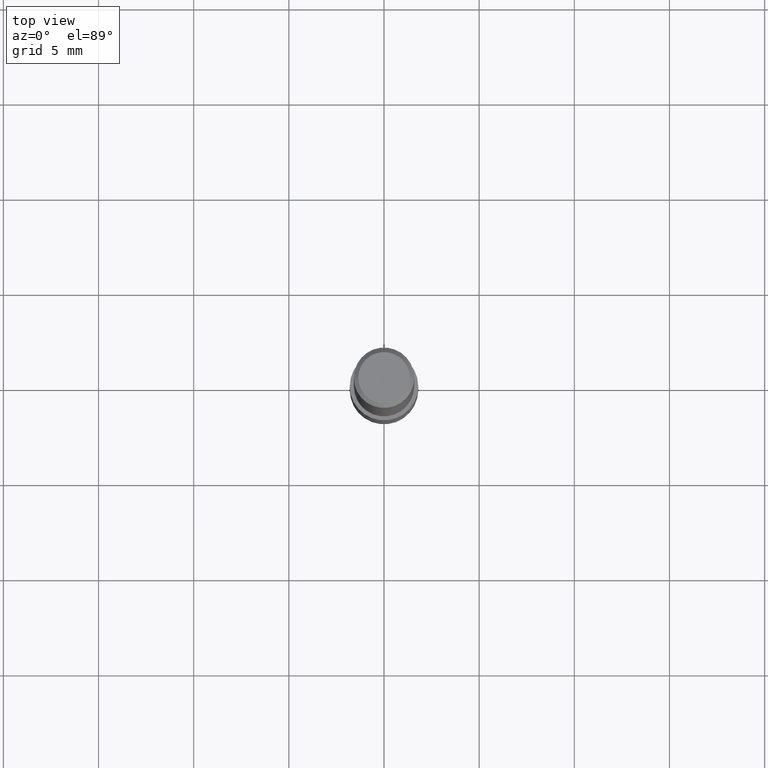
[diagram: clean part render]
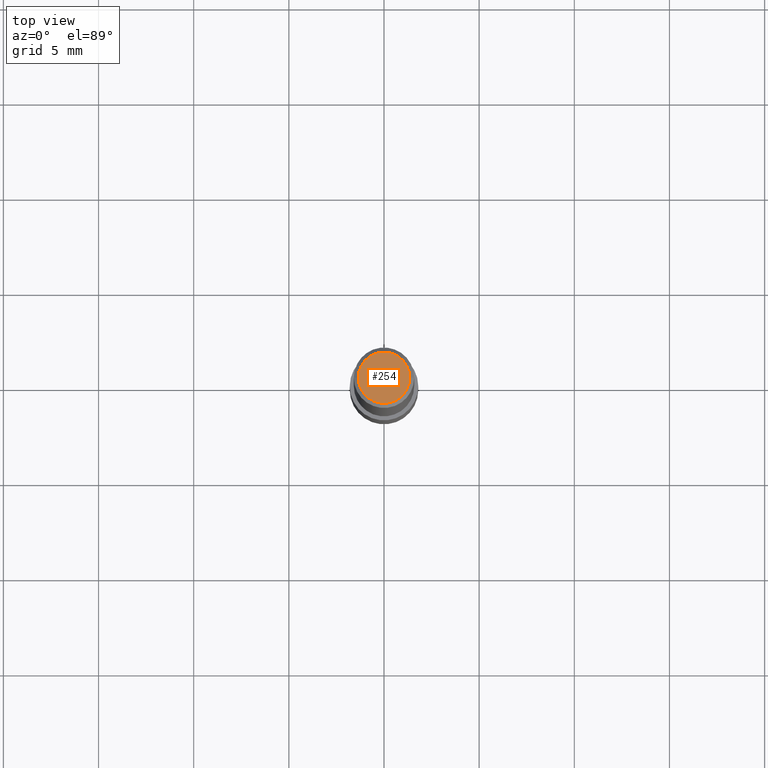
[diagram: same view with one face highlighted and labeled with its STEP entity id]
A machine part, top view. The second image highlights one B-rep face of the part: STEP entity #254.
In plain terms, the highlighted planar face has unit normal (0, -0, -1).
Its self-contained STEP definition (entity closure, byte-faithful):
#5 = DIRECTION ( 'NONE',  ( 1.000000000000000000, -6.982962677686266711E-15, 4.876176628004948512E-29 ) ) ;
#11 = DIRECTION ( 'NONE',  ( -1.000000000000000000, 6.982962677686265922E-15, -4.876176775795935793E-29 ) ) ;
#17 = EDGE_CURVE ( 'NONE', #153, #262, #289, .T. ) ;
#18 = AXIS2_PLACEMENT_3D ( 'NONE', #265, #136, #11 ) ;
#24 = EDGE_LOOP ( 'NONE', ( #232, #338 ) ) ;
#51 = CARTESIAN_POINT ( 'NONE',  ( -7.487088864773345706E-50, 1.068957861474247695E-35, 3.061616997868395197E-21 ) ) ;
#52 = DIRECTION ( 'NONE',  ( 1.000000000000000000, -6.982962677686266711E-15, 4.876176628004948512E-29 ) ) ;
#76 = DIRECTION ( 'NONE',  ( -2.445468806185136597E-29, 3.491481338843145583E-15, 1.000000000000000000 ) ) ;
#97 = AXIS2_PLACEMENT_3D ( 'NONE', #51, #105, #5 ) ;
#105 = DIRECTION ( 'NONE',  ( -2.445468806185136597E-29, 3.491481338843145583E-15, 1.000000000000000000 ) ) ;
#113 = CARTESIAN_POINT ( 'NONE',  ( 0.05312499999999999861, -4.129888592719939842E-16, 3.061617000609493422E-21 ) ) ;
#121 = CARTESIAN_POINT ( 'NONE',  ( -7.487088864773345706E-50, 1.068957861474247695E-35, 3.061616997868395197E-21 ) ) ;
#132 = AXIS2_PLACEMENT_3D ( 'NONE', #121, #76, #52 ) ;
#136 = DIRECTION ( 'NONE',  ( 2.438088387897960049E-29, -3.491481338843145188E-15, -1.000000000000000000 ) ) ;
#153 = VERTEX_POINT ( 'NONE', #113 ) ;
#183 = CARTESIAN_POINT ( 'NONE',  ( -0.05312499999999999861, 3.873362110279099094E-16, 3.061616995216862494E-21 ) ) ;
#193 = CIRCLE ( 'NONE', #97, 0.05312499999999999861 ) ;
#214 = EDGE_CURVE ( 'NONE', #262, #153, #193, .T. ) ;
#232 = ORIENTED_EDGE ( 'NONE', *, *, #214, .T. ) ;
#240 = PLANE ( 'NONE',  #18 ) ;
#254 = ADVANCED_FACE ( 'NONE', ( #297 ), #240, .F. ) ;
#262 = VERTEX_POINT ( 'NONE', #183 ) ;
#265 = CARTESIAN_POINT ( 'NONE',  ( -3.743544432386672853E-50, 5.344789307371238476E-36, 1.530808498934197599E-21 ) ) ;
#289 = CIRCLE ( 'NONE', #132, 0.05312499999999999861 ) ;
#297 = FACE_OUTER_BOUND ( 'NONE', #24, .T. ) ;
#338 = ORIENTED_EDGE ( 'NONE', *, *, #17, .T. ) ;